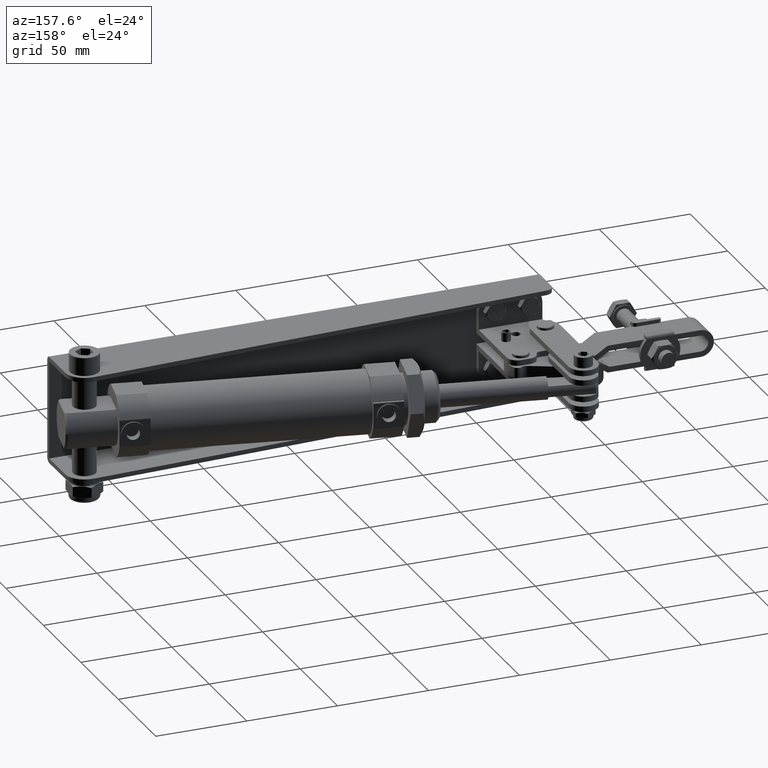
[diagram: clean part render]
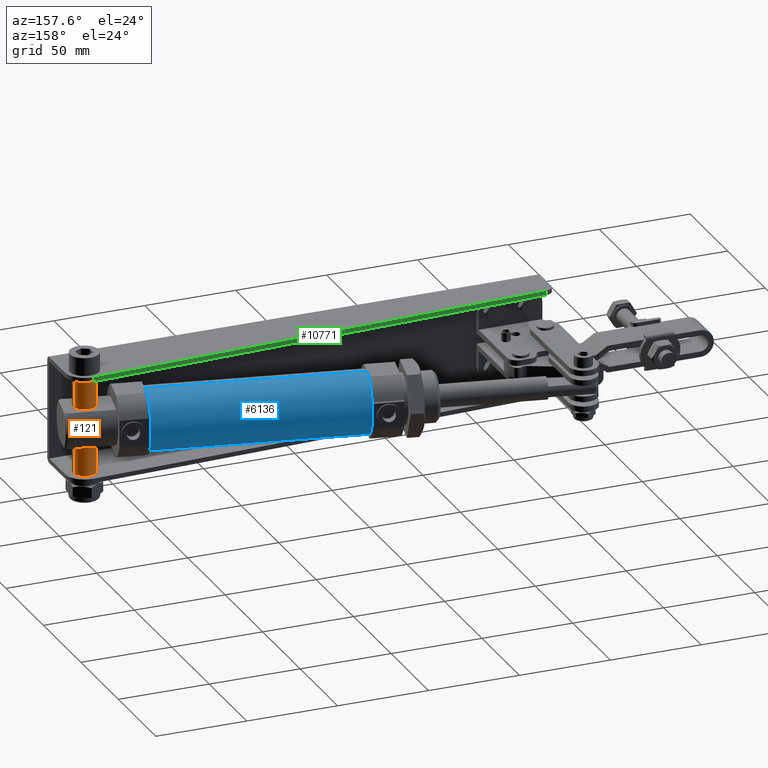
[diagram: same view with three faces highlighted in distinct colors, each labeled with its STEP entity id]
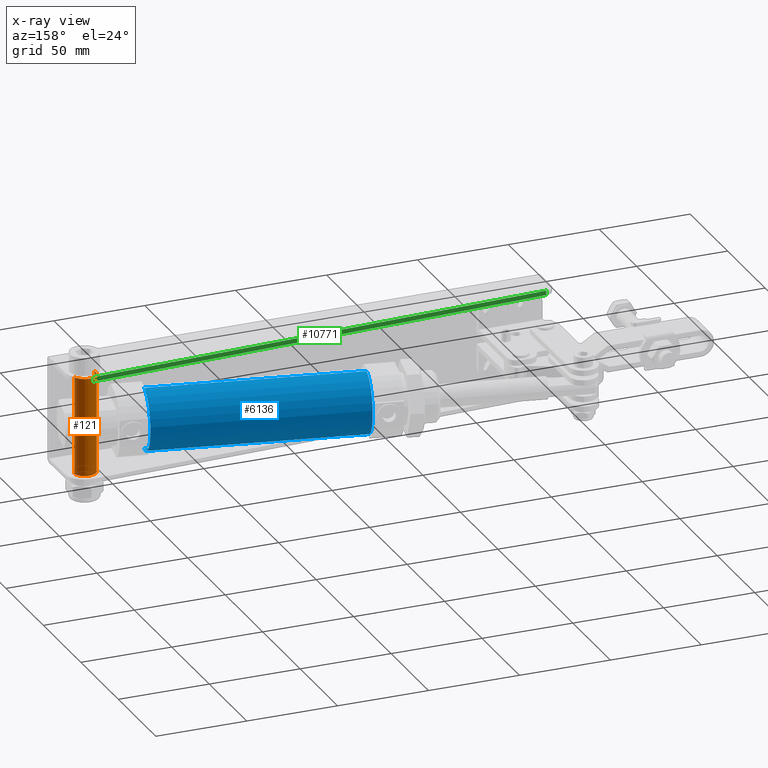
[diagram: x-ray of the same camera — body ghosted, the three highlighted faces saturated]
A machine part, auxiliary view with three faces highlighted in distinct colors.
The next image is the same camera in x-ray (body ghosted, the three faces saturated) — at least one of them is partly hidden behind the body in this view.
Their STEP definitions:

[orange] entity #121 — the highlighted cylindrical surface (edge-blend (fillet) strip) has radius 6.35 mm, axis along (0, 0, -1).
#121 = ADVANCED_FACE ( 'NONE', ( #2360 ), #16402, .T. ) ;
#386 = CARTESIAN_POINT ( 'NONE',  ( 224.5000000000021600, 21.49999999997768900, 26.99999999999812400 ) ) ;
#498 = AXIS2_PLACEMENT_3D ( 'NONE', #8161, #21529, #10082 ) ;
#2360 = FACE_OUTER_BOUND ( 'NONE', #3376, .T. ) ;
#2592 = ORIENTED_EDGE ( 'NONE', *, *, #19450, .F. ) ;
#3068 = CARTESIAN_POINT ( 'NONE',  ( 218.3484735623300700, 19.92481033310544100, 26.99999999999812400 ) ) ;
#3282 = CARTESIAN_POINT ( 'NONE',  ( 230.6515264376742800, 23.07518966684994100, 26.99999999999812400 ) ) ;
#3376 = EDGE_LOOP ( 'NONE', ( #2592, #5824, #16180, #18506 ) ) ;
#4803 = CIRCLE ( 'NONE', #22972, 6.350000000000001400 ) ;
#4980 = VECTOR ( 'NONE', #20512, 1000.000000000000000 ) ;
#5000 = DIRECTION ( 'NONE',  ( 0.0000000000000000000, -0.0000000000000000000, -1.000000000000000000 ) ) ;
#5569 = EDGE_CURVE ( 'NONE', #6275, #7870, #15752, .T. ) ;
#5824 = ORIENTED_EDGE ( 'NONE', *, *, #5569, .T. ) ;
#6275 = VERTEX_POINT ( 'NONE', #11331 ) ;
#7870 = VERTEX_POINT ( 'NONE', #10180 ) ;
#8082 = DIRECTION ( 'NONE',  ( -0.9687443208932452500, -0.2480613648617714400, 0.0000000000000000000 ) ) ;
#8161 = CARTESIAN_POINT ( 'NONE',  ( 224.5000000000021600, 21.49999999997768900, 26.99999999999812400 ) ) ;
#8498 = VERTEX_POINT ( 'NONE', #16159 ) ;
#9208 = AXIS2_PLACEMENT_3D ( 'NONE', #386, #23302, #8082 ) ;
#9549 = CARTESIAN_POINT ( 'NONE',  ( 224.5000000000021600, 21.49999999997768900, -27.00000000000000400 ) ) ;
#10082 = DIRECTION ( 'NONE',  ( 0.9687443208932452500, 0.2480613648617714400, 0.0000000000000000000 ) ) ;
#10180 = CARTESIAN_POINT ( 'NONE',  ( 230.6515264376742800, 23.07518966684994100, -27.00000000000000400 ) ) ;
#10188 = CARTESIAN_POINT ( 'NONE',  ( 218.3484735623300700, 19.92481033310544100, 26.99999999999812400 ) ) ;
#11331 = CARTESIAN_POINT ( 'NONE',  ( 230.6515264376742800, 23.07518966684994100, 26.99999999999812400 ) ) ;
#11443 = DIRECTION ( 'NONE',  ( 0.0000000000000000000, 1.000000000000000000, 0.0000000000000000000 ) ) ;
#12594 = EDGE_CURVE ( 'NONE', #7870, #8498, #4803, .T. ) ;
#14555 = VECTOR ( 'NONE', #5000, 1000.000000000000000 ) ;
#15752 = LINE ( 'NONE', #3282, #4980 ) ;
#16159 = CARTESIAN_POINT ( 'NONE',  ( 218.3484735623300700, 19.92481033310544100, -27.00000000000000400 ) ) ;
#16180 = ORIENTED_EDGE ( 'NONE', *, *, #12594, .T. ) ;
#16402 = CYLINDRICAL_SURFACE ( 'NONE', #9208, 6.350000000000004100 ) ;
#17401 = CIRCLE ( 'NONE', #498, 6.350000000000004100 ) ;
#17466 = EDGE_CURVE ( 'NONE', #18953, #8498, #19035, .T. ) ;
#18506 = ORIENTED_EDGE ( 'NONE', *, *, #17466, .F. ) ;
#18953 = VERTEX_POINT ( 'NONE', #10188 ) ;
#19035 = LINE ( 'NONE', #3068, #14555 ) ;
#19450 = EDGE_CURVE ( 'NONE', #6275, #18953, #17401, .T. ) ;
#20512 = DIRECTION ( 'NONE',  ( 0.0000000000000000000, -0.0000000000000000000, -1.000000000000000000 ) ) ;
#21529 = DIRECTION ( 'NONE',  ( 0.0000000000000000000, 0.0000000000000000000, 1.000000000000000000 ) ) ;
#22929 = DIRECTION ( 'NONE',  ( -0.0000000000000000000, 4.336808689942016500E-017, 1.000000000000000000 ) ) ;
#22972 = AXIS2_PLACEMENT_3D ( 'NONE', #9549, #22929, #11443 ) ;
#23302 = DIRECTION ( 'NONE',  ( 0.0000000000000000000, -0.0000000000000000000, -1.000000000000000000 ) ) ;

[blue] entity #6136 — the highlighted cylindrical surface (edge-blend (fillet) strip) has radius 16.8 mm, axis along (0.9785, -0.2061, 0).
#139 = DIRECTION ( 'NONE',  ( 0.0000000000000000000, 6.195440985631441500E-016, 1.000000000000000000 ) ) ;
#346 = EDGE_CURVE ( 'NONE', #23294, #22033, #7137, .T. ) ;
#1258 = DIRECTION ( 'NONE',  ( 0.9785284868390311500, -0.2061116213232917500, 1.583905819668312900E-016 ) ) ;
#1589 = CARTESIAN_POINT ( 'NONE',  ( 35.13753947769568200, 61.38622128117862100, 16.80000000000153500 ) ) ;
#1888 = VERTEX_POINT ( 'NONE', #5968 ) ;
#2028 = ORIENTED_EDGE ( 'NONE', *, *, #17025, .T. ) ;
#2802 = DIRECTION ( 'NONE',  ( 0.9785284868390311500, -0.2061116213232917500, 1.583905819668312900E-016 ) ) ;
#4371 = FACE_OUTER_BOUND ( 'NONE', #5298, .T. ) ;
#5054 = ORIENTED_EDGE ( 'NONE', *, *, #15092, .F. ) ;
#5298 = EDGE_LOOP ( 'NONE', ( #20096, #5054, #2028, #20522 ) ) ;
#5946 = CARTESIAN_POINT ( 'NONE',  ( 194.1656169079919000, 27.88946026099968400, 16.80000000000156000 ) ) ;
#5964 = CARTESIAN_POINT ( 'NONE',  ( 81.63484092150341100, 51.59229671317819300, 1.509132465837120300E-012 ) ) ;
#5968 = CARTESIAN_POINT ( 'NONE',  ( 81.63484092150341100, 51.59229671317822200, 16.80000000000154300 ) ) ;
#6136 = ADVANCED_FACE ( 'NONE', ( #4371 ), #7045, .T. ) ;
#6341 = EDGE_CURVE ( 'NONE', #22033, #15541, #11198, .T. ) ;
#7045 = CYLINDRICAL_SURFACE ( 'NONE', #14933, 16.80000000000003300 ) ;
#7137 = LINE ( 'NONE', #14247, #21795 ) ;
#7867 = DIRECTION ( 'NONE',  ( 0.0000000000000000000, 4.130293990420961000E-016, 1.000000000000000000 ) ) ;
#8936 = CARTESIAN_POINT ( 'NONE',  ( 35.13753947769568200, 61.38622128117861400, 1.501179905704235900E-012 ) ) ;
#9216 = LINE ( 'NONE', #1589, #13680 ) ;
#9730 = CIRCLE ( 'NONE', #21440, 16.80000000000003300 ) ;
#11198 = CIRCLE ( 'NONE', #18304, 16.80000000000003300 ) ;
#11573 = DIRECTION ( 'NONE',  ( 0.9785284868390311500, -0.2061116213232917500, 1.583905819668312900E-016 ) ) ;
#13680 = VECTOR ( 'NONE', #22665, 1000.000000000000000 ) ;
#14247 = CARTESIAN_POINT ( 'NONE',  ( 35.13753947769568200, 61.38622128117859900, -16.79999999999853000 ) ) ;
#14933 = AXIS2_PLACEMENT_3D ( 'NONE', #8936, #1258, #18542 ) ;
#15092 = EDGE_CURVE ( 'NONE', #1888, #23294, #9730, .T. ) ;
#15541 = VERTEX_POINT ( 'NONE', #5946 ) ;
#17025 = EDGE_CURVE ( 'NONE', #1888, #15541, #9216, .T. ) ;
#18304 = AXIS2_PLACEMENT_3D ( 'NONE', #23054, #11573, #139 ) ;
#18459 = CARTESIAN_POINT ( 'NONE',  ( 81.63484092150341100, 51.59229671317819300, -16.79999999999852300 ) ) ;
#18542 = DIRECTION ( 'NONE',  ( 0.0000000000000000000, 4.130293990420961000E-016, 1.000000000000000000 ) ) ;
#19308 = DIRECTION ( 'NONE',  ( -0.9785284868390311500, 0.2061116213232917500, -1.583905819668312900E-016 ) ) ;
#20096 = ORIENTED_EDGE ( 'NONE', *, *, #346, .F. ) ;
#20522 = ORIENTED_EDGE ( 'NONE', *, *, #6341, .F. ) ;
#21133 = CARTESIAN_POINT ( 'NONE',  ( 194.1656169079918800, 27.88946026099967000, -16.79999999999850900 ) ) ;
#21440 = AXIS2_PLACEMENT_3D ( 'NONE', #5964, #19308, #7867 ) ;
#21795 = VECTOR ( 'NONE', #2802, 1000.000000000000000 ) ;
#22033 = VERTEX_POINT ( 'NONE', #21133 ) ;
#22665 = DIRECTION ( 'NONE',  ( 0.9785284868390311500, -0.2061116213232917500, 1.583905819668312900E-016 ) ) ;
#23054 = CARTESIAN_POINT ( 'NONE',  ( 194.1656169079918800, 27.88946026099969800, 1.527329335157306300E-012 ) ) ;
#23294 = VERTEX_POINT ( 'NONE', #18459 ) ;

[green] entity #10771 — the highlighted planar face has unit normal (-0.0482, 0.9988, 0).
#780 = EDGE_LOOP ( 'NONE', ( #21926, #23313, #821, #14526 ) ) ;
#804 = CARTESIAN_POINT ( 'NONE',  ( 223.9943135580259600, 31.98781584613324800, -29.50000000000000700 ) ) ;
#821 = ORIENTED_EDGE ( 'NONE', *, *, #22653, .F. ) ;
#1684 = VECTOR ( 'NONE', #2794, 1000.000000000000000 ) ;
#1829 = VERTEX_POINT ( 'NONE', #3790 ) ;
#2794 = DIRECTION ( 'NONE',  ( -0.0000000000000000000, -0.0000000000000000000, 1.000000000000000000 ) ) ;
#3127 = LINE ( 'NONE', #8951, #12674 ) ;
#3593 = CARTESIAN_POINT ( 'NONE',  ( -34.99999999999999300, 19.50000000000000000, -29.50000000000000700 ) ) ;
#3790 = CARTESIAN_POINT ( 'NONE',  ( -30.24080306760668100, 19.72947212257575300, 29.50000000000003200 ) ) ;
#5529 = DIRECTION ( 'NONE',  ( -0.9988396043936425000, -0.04816061352133833200, 0.0000000000000000000 ) ) ;
#5810 = CARTESIAN_POINT ( 'NONE',  ( 223.9943135580259100, 31.98781584613324800, 29.50000000000003200 ) ) ;
#5849 = DIRECTION ( 'NONE',  ( -0.9988396043936425000, -0.04816061352133833200, -1.879770305090511700E-017 ) ) ;
#7207 = LINE ( 'NONE', #19196, #16750 ) ;
#7698 = VERTEX_POINT ( 'NONE', #13418 ) ;
#8951 = CARTESIAN_POINT ( 'NONE',  ( -30.24080306760668100, 19.72947212257575300, -29.50000000000000700 ) ) ;
#9198 = PLANE ( 'NONE',  #18277 ) ;
#9366 = VECTOR ( 'NONE', #15748, 1000.000000000000100 ) ;
#10771 = ADVANCED_FACE ( 'NONE', ( #16774 ), #9198, .T. ) ;
#10882 = DIRECTION ( 'NONE',  ( 0.0000000000000000000, 0.0000000000000000000, 1.000000000000000000 ) ) ;
#12674 = VECTOR ( 'NONE', #10882, 1000.000000000000000 ) ;
#13418 = CARTESIAN_POINT ( 'NONE',  ( 223.9943135580259600, 31.98781584613324800, 27.00000000000000400 ) ) ;
#14526 = ORIENTED_EDGE ( 'NONE', *, *, #21254, .F. ) ;
#15330 = EDGE_CURVE ( 'NONE', #24403, #1829, #3127, .T. ) ;
#15748 = DIRECTION ( 'NONE',  ( -0.9988396043936425000, -0.04816061352133832500, -0.0000000000000000000 ) ) ;
#16567 = VERTEX_POINT ( 'NONE', #5810 ) ;
#16750 = VECTOR ( 'NONE', #5849, 1000.000000000000100 ) ;
#16774 = FACE_OUTER_BOUND ( 'NONE', #780, .T. ) ;
#16953 = DIRECTION ( 'NONE',  ( -0.04816061352133833200, 0.9988396043936425000, 0.0000000000000000000 ) ) ;
#18277 = AXIS2_PLACEMENT_3D ( 'NONE', #3593, #16953, #5529 ) ;
#19196 = CARTESIAN_POINT ( 'NONE',  ( 233.3154459129628700, 32.43724881910780800, 27.00000000000001800 ) ) ;
#19521 = LINE ( 'NONE', #21596, #9366 ) ;
#21254 = EDGE_CURVE ( 'NONE', #7698, #16567, #21436, .T. ) ;
#21436 = LINE ( 'NONE', #804, #1684 ) ;
#21596 = CARTESIAN_POINT ( 'NONE',  ( -34.99999999999999300, 19.50000000000000000, 29.50000000000003200 ) ) ;
#21926 = ORIENTED_EDGE ( 'NONE', *, *, #23462, .T. ) ;
#22653 = EDGE_CURVE ( 'NONE', #16567, #1829, #19521, .T. ) ;
#23313 = ORIENTED_EDGE ( 'NONE', *, *, #15330, .T. ) ;
#23462 = EDGE_CURVE ( 'NONE', #7698, #24403, #7207, .T. ) ;
#24403 = VERTEX_POINT ( 'NONE', #24753 ) ;
#24753 = CARTESIAN_POINT ( 'NONE',  ( -30.24080306760675200, 19.72947212257575000, 27.00000000000001400 ) ) ;